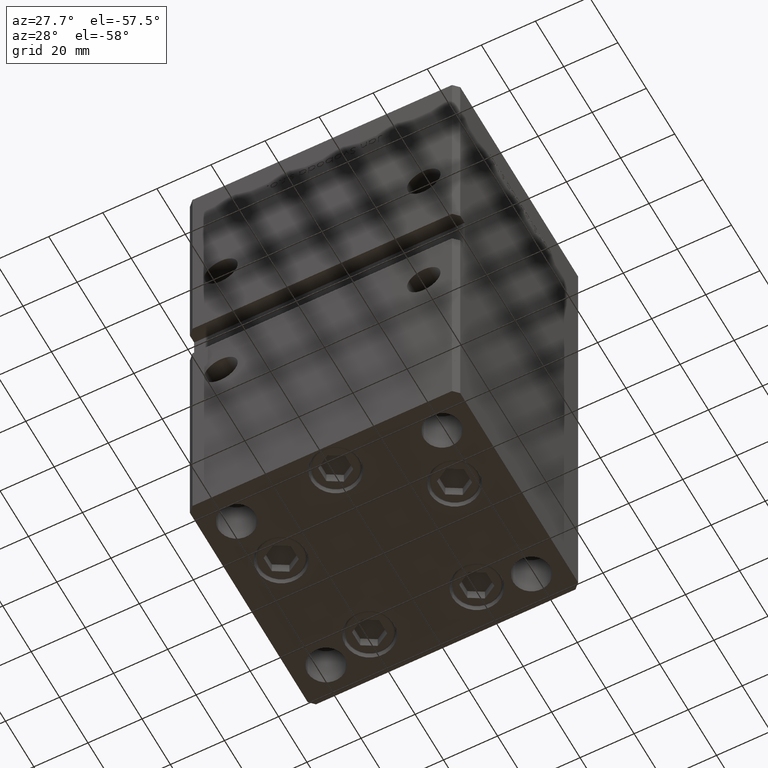
[diagram: clean part render]
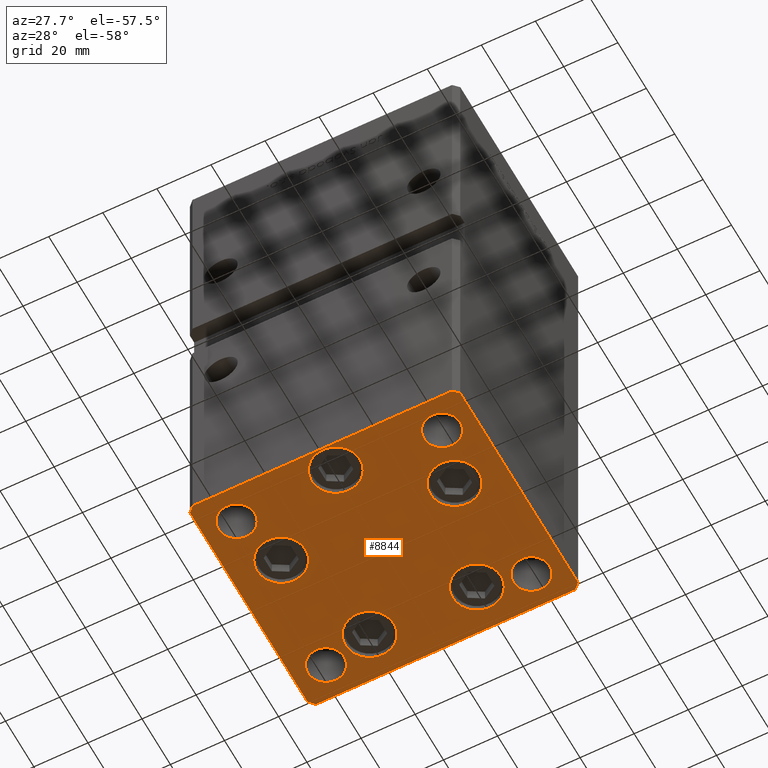
[diagram: same view with one face highlighted and labeled with its STEP entity id]
A machine part, auxiliary view. The second image highlights one B-rep face of the part: STEP entity #8844.
In plain terms, the highlighted planar face has unit normal (0, 0, -1).
Its self-contained STEP definition (entity closure, byte-faithful):
#515 = CARTESIAN_POINT ( 'NONE',  ( -50.00000000000000711, 41.49999999999995026, 0.000000000000000000 ) ) ;
#602 = DIRECTION ( 'NONE',  ( 0.7071067811865463515, 0.7071067811865487940, 0.000000000000000000 ) ) ;
#1158 = CARTESIAN_POINT ( 'NONE',  ( -47.99999999999999289, -43.50000000000001421, 0.000000000000000000 ) ) ;
#1231 = VERTEX_POINT ( 'NONE', #8826 ) ;
#1315 = CARTESIAN_POINT ( 'NONE',  ( 47.99999999999990763, 43.50000000000000000, 0.000000000000000000 ) ) ;
#1426 = DIRECTION ( 'NONE',  ( 1.000000000000000000, 0.000000000000000000, 0.000000000000000000 ) ) ;
#2004 = DIRECTION ( 'NONE',  ( 1.000000000000000000, 0.000000000000000000, 0.000000000000000000 ) ) ;
#2041 = AXIS2_PLACEMENT_3D ( 'NONE', #2871, #43785, #19278 ) ;
#2077 = CARTESIAN_POINT ( 'NONE',  ( -50.00000000000000711, 41.49999999999995026, 0.000000000000000000 ) ) ;
#2084 = DIRECTION ( 'NONE',  ( 0.000000000000000000, -0.000000000000000000, -1.000000000000000000 ) ) ;
#2335 = EDGE_CURVE ( 'NONE', #30189, #49201, #42742, .T. ) ;
#2353 = CARTESIAN_POINT ( 'NONE',  ( 50.00000000000000000, -41.49999999999999289, 0.000000000000000000 ) ) ;
#2357 = LINE ( 'NONE', #34656, #28492 ) ;
#2389 = CARTESIAN_POINT ( 'NONE',  ( -50.00000000000000000, -41.50000000000000000, 0.000000000000000000 ) ) ;
#2556 = CARTESIAN_POINT ( 'NONE',  ( 32.05550741379015278, -11.33333333333333037, 0.000000000000000000 ) ) ;
#2664 = EDGE_CURVE ( 'NONE', #6027, #41955, #37259, .T. ) ;
#2716 = CARTESIAN_POINT ( 'NONE',  ( 28.82068048781372838, 27.62500000000000000, 0.000000000000000000 ) ) ;
#2800 = CARTESIAN_POINT ( 'NONE',  ( -32.05550741379015278, -11.33333333333333925, 0.000000000000000000 ) ) ;
#2847 = DIRECTION ( 'NONE',  ( 1.000000000000000000, 0.000000000000000000, 0.000000000000000000 ) ) ;
#2871 = CARTESIAN_POINT ( 'NONE',  ( 0.000000000000000000, 0.000000000000000000, 0.000000000000000000 ) ) ;
#3306 = CIRCLE ( 'NONE', #27351, 9.000000000000001776 ) ;
#3525 = CARTESIAN_POINT ( 'NONE',  ( 41.05550741379015278, -11.33333333333332860, 0.000000000000000000 ) ) ;
#3667 = EDGE_CURVE ( 'NONE', #33695, #31370, #39026, .T. ) ;
#4667 = AXIS2_PLACEMENT_3D ( 'NONE', #8955, #4915, #12741 ) ;
#4677 = VECTOR ( 'NONE', #17210, 1000.000000000000000 ) ;
#4782 = DIRECTION ( 'NONE',  ( 1.000000000000000000, 0.000000000000000000, 0.000000000000000000 ) ) ;
#4915 = DIRECTION ( 'NONE',  ( 0.000000000000000000, -0.000000000000000000, -1.000000000000000000 ) ) ;
#5083 = VERTEX_POINT ( 'NONE', #35070 ) ;
#5452 = DIRECTION ( 'NONE',  ( 0.000000000000000000, -0.000000000000000000, -1.000000000000000000 ) ) ;
#5499 = ORIENTED_EDGE ( 'NONE', *, *, #2664, .T. ) ;
#5582 = EDGE_CURVE ( 'NONE', #23520, #27331, #17571, .T. ) ;
#5605 = CIRCLE ( 'NONE', #44319, 9.000000000000001776 ) ;
#5790 = ORIENTED_EDGE ( 'NONE', *, *, #5582, .T. ) ;
#6027 = VERTEX_POINT ( 'NONE', #2716 ) ;
#6241 = EDGE_CURVE ( 'NONE', #21551, #27215, #27023, .T. ) ;
#6294 = VECTOR ( 'NONE', #47298, 1000.000000000000000 ) ;
#6646 = FACE_BOUND ( 'NONE', #33800, .T. ) ;
#6769 = CARTESIAN_POINT ( 'NONE',  ( 9.000000000000003553, -34.00000000000000000, 0.000000000000000000 ) ) ;
#6898 = DIRECTION ( 'NONE',  ( 0.000000000000000000, -0.000000000000000000, -1.000000000000000000 ) ) ;
#8826 = CARTESIAN_POINT ( 'NONE',  ( 47.99999999999999289, -43.50000000000001421, 0.000000000000000000 ) ) ;
#8844 = ADVANCED_FACE ( 'NONE', ( #35169, #23047, #35435, #35987, #6646, #51598, #27358, #14705, #14975, #23591 ), #40025, .T. ) ;
#8955 = CARTESIAN_POINT ( 'NONE',  ( -32.05550741379015278, -11.33333333333333925, 0.000000000000000000 ) ) ;
#9012 = CARTESIAN_POINT ( 'NONE',  ( -31.25000000000000000, 31.50000000000000000, 0.000000000000000000 ) ) ;
#9023 = AXIS2_PLACEMENT_3D ( 'NONE', #50000, #29808, #4782 ) ;
#9041 = DIRECTION ( 'NONE',  ( -0.000000000000000000, 0.000000000000000000, 1.000000000000000000 ) ) ;
#9100 = AXIS2_PLACEMENT_3D ( 'NONE', #21493, #20960, #37921 ) ;
#10024 = LINE ( 'NONE', #1158, #12158 ) ;
#10076 = ORIENTED_EDGE ( 'NONE', *, *, #3667, .T. ) ;
#10717 = CARTESIAN_POINT ( 'NONE',  ( 38.00000000000000000, 31.49999999999999289, 0.000000000000000000 ) ) ;
#11769 = EDGE_CURVE ( 'NONE', #27892, #46682, #37409, .T. ) ;
#11914 = AXIS2_PLACEMENT_3D ( 'NONE', #10717, #35472, #51634 ) ;
#12158 = VECTOR ( 'NONE', #1426, 1000.000000000000000 ) ;
#12248 = CARTESIAN_POINT ( 'NONE',  ( 4.163799117101000559E-15, -34.00000000000000000, 0.000000000000000000 ) ) ;
#12741 = DIRECTION ( 'NONE',  ( 1.000000000000000000, 0.000000000000000000, 0.000000000000000000 ) ) ;
#12774 = ORIENTED_EDGE ( 'NONE', *, *, #13162, .F. ) ;
#13162 = EDGE_CURVE ( 'NONE', #41517, #42000, #32239, .T. ) ;
#13315 = EDGE_LOOP ( 'NONE', ( #21997, #28633 ) ) ;
#13697 = CARTESIAN_POINT ( 'NONE',  ( 50.00000000000000000, -41.49999999999999289, 0.000000000000000000 ) ) ;
#13919 = CARTESIAN_POINT ( 'NONE',  ( -38.00000000000000000, 31.50000000000000000, 0.000000000000000000 ) ) ;
#14182 = CARTESIAN_POINT ( 'NONE',  ( 4.163799117101000559E-15, -34.00000000000000000, 0.000000000000000000 ) ) ;
#14438 = DIRECTION ( 'NONE',  ( 8.360113137237628665E-17, -1.000000000000000000, 0.000000000000000000 ) ) ;
#14627 = VERTEX_POINT ( 'NONE', #1315 ) ;
#14705 = FACE_BOUND ( 'NONE', #13315, .T. ) ;
#14975 = FACE_OUTER_BOUND ( 'NONE', #16560, .T. ) ;
#15670 = EDGE_CURVE ( 'NONE', #46285, #25191, #35742, .T. ) ;
#16280 = LINE ( 'NONE', #36731, #19395 ) ;
#16314 = ORIENTED_EDGE ( 'NONE', *, *, #38926, .T. ) ;
#16502 = AXIS2_PLACEMENT_3D ( 'NONE', #43489, #27334, #27600 ) ;
#16560 = EDGE_LOOP ( 'NONE', ( #42926, #16314, #49876, #41262, #20568, #52063, #44289, #41537 ) ) ;
#16655 = AXIS2_PLACEMENT_3D ( 'NONE', #46893, #5452, #38289 ) ;
#17093 = ORIENTED_EDGE ( 'NONE', *, *, #49258, .T. ) ;
#17210 = DIRECTION ( 'NONE',  ( -0.7071067811865463515, -0.7071067811865487940, 0.000000000000000000 ) ) ;
#17526 = CARTESIAN_POINT ( 'NONE',  ( 47.99999999999999289, -43.50000000000001421, 0.000000000000000000 ) ) ;
#17571 = CIRCLE ( 'NONE', #40802, 9.000000000000000000 ) ;
#18205 = DIRECTION ( 'NONE',  ( -1.000000000000000000, -3.614007241618350743E-16, 0.000000000000000000 ) ) ;
#18477 = DIRECTION ( 'NONE',  ( 1.000000000000000000, 0.000000000000000000, 0.000000000000000000 ) ) ;
#18529 = EDGE_CURVE ( 'NONE', #21990, #32491, #21226, .T. ) ;
#18578 = CIRCLE ( 'NONE', #27184, 9.000000000000000000 ) ;
#18676 = CARTESIAN_POINT ( 'NONE',  ( 32.05550741379015278, -11.33333333333333037, 0.000000000000000000 ) ) ;
#18982 = CARTESIAN_POINT ( 'NONE',  ( -37.99999999999999289, -31.50000000000000000, 0.000000000000000000 ) ) ;
#19017 = VERTEX_POINT ( 'NONE', #48720 ) ;
#19278 = DIRECTION ( 'NONE',  ( 1.000000000000000000, 0.000000000000000000, 0.000000000000000000 ) ) ;
#19395 = VECTOR ( 'NONE', #49118, 1000.000000000000114 ) ;
#19478 = EDGE_CURVE ( 'NONE', #25191, #46285, #30691, .T. ) ;
#19700 = CARTESIAN_POINT ( 'NONE',  ( 19.82068048781373193, 27.62500000000000000, 0.000000000000000000 ) ) ;
#19749 = DIRECTION ( 'NONE',  ( 1.000000000000000000, 0.000000000000000000, 0.000000000000000000 ) ) ;
#19831 = EDGE_CURVE ( 'NONE', #1231, #30189, #33955, .T. ) ;
#19838 = EDGE_LOOP ( 'NONE', ( #31631, #23323 ) ) ;
#19960 = CIRCLE ( 'NONE', #39729, 6.749999999999999112 ) ;
#20075 = AXIS2_PLACEMENT_3D ( 'NONE', #31618, #35935, #52348 ) ;
#20359 = CARTESIAN_POINT ( 'NONE',  ( -38.00000000000000000, 31.50000000000000000, 0.000000000000000000 ) ) ;
#20527 = ORIENTED_EDGE ( 'NONE', *, *, #15670, .T. ) ;
#20568 = ORIENTED_EDGE ( 'NONE', *, *, #44952, .T. ) ;
#20628 = ORIENTED_EDGE ( 'NONE', *, *, #51313, .T. ) ;
#20960 = DIRECTION ( 'NONE',  ( 0.000000000000000000, -0.000000000000000000, -1.000000000000000000 ) ) ;
#21051 = CARTESIAN_POINT ( 'NONE',  ( -41.05550741379015278, -11.33333333333333925, 0.000000000000000000 ) ) ;
#21211 = CARTESIAN_POINT ( 'NONE',  ( -44.74999999999999289, -31.50000000000000000, 0.000000000000000000 ) ) ;
#21226 = CIRCLE ( 'NONE', #28993, 6.749999999999999112 ) ;
#21414 = EDGE_CURVE ( 'NONE', #42677, #19017, #3306, .T. ) ;
#21493 = CARTESIAN_POINT ( 'NONE',  ( -37.99999999999999289, -31.50000000000000000, 0.000000000000000000 ) ) ;
#21551 = VERTEX_POINT ( 'NONE', #21051 ) ;
#21641 = CIRCLE ( 'NONE', #16502, 9.000000000000000000 ) ;
#21977 = CARTESIAN_POINT ( 'NONE',  ( 47.99999999999990763, 43.50000000000000000, 0.000000000000000000 ) ) ;
#21988 = DIRECTION ( 'NONE',  ( -0.000000000000000000, 0.000000000000000000, 1.000000000000000000 ) ) ;
#21990 = VERTEX_POINT ( 'NONE', #31467 ) ;
#21997 = ORIENTED_EDGE ( 'NONE', *, *, #50215, .F. ) ;
#22479 = DIRECTION ( 'NONE',  ( 0.000000000000000000, -0.000000000000000000, -1.000000000000000000 ) ) ;
#22734 = EDGE_CURVE ( 'NONE', #42000, #41517, #51452, .T. ) ;
#22848 = AXIS2_PLACEMENT_3D ( 'NONE', #13919, #21988, #50538 ) ;
#23023 = CARTESIAN_POINT ( 'NONE',  ( 38.00000000000000000, -31.49999999999999289, 0.000000000000000000 ) ) ;
#23047 = FACE_BOUND ( 'NONE', #38685, .T. ) ;
#23323 = ORIENTED_EDGE ( 'NONE', *, *, #21414, .T. ) ;
#23520 = VERTEX_POINT ( 'NONE', #6769 ) ;
#23591 = FACE_BOUND ( 'NONE', #48955, .T. ) ;
#24348 = DIRECTION ( 'NONE',  ( 0.000000000000000000, -0.000000000000000000, -1.000000000000000000 ) ) ;
#24614 = DIRECTION ( 'NONE',  ( 1.000000000000000000, 0.000000000000000000, 0.000000000000000000 ) ) ;
#25191 = VERTEX_POINT ( 'NONE', #21211 ) ;
#25483 = AXIS2_PLACEMENT_3D ( 'NONE', #19700, #48247, #44994 ) ;
#25648 = ORIENTED_EDGE ( 'NONE', *, *, #51927, .T. ) ;
#25682 = CARTESIAN_POINT ( 'NONE',  ( 49.99999999999992184, 41.49999999999998579, 0.000000000000000000 ) ) ;
#26085 = CARTESIAN_POINT ( 'NONE',  ( -48.00000000000000711, 43.49999999999996447, 0.000000000000000000 ) ) ;
#26100 = EDGE_CURVE ( 'NONE', #5083, #36108, #36840, .T. ) ;
#26303 = VECTOR ( 'NONE', #14438, 1000.000000000000000 ) ;
#27023 = CIRCLE ( 'NONE', #4667, 9.000000000000001776 ) ;
#27184 = AXIS2_PLACEMENT_3D ( 'NONE', #14182, #2084, #18477 ) ;
#27215 = VERTEX_POINT ( 'NONE', #42776 ) ;
#27269 = AXIS2_PLACEMENT_3D ( 'NONE', #18982, #35406, #36211 ) ;
#27331 = VERTEX_POINT ( 'NONE', #51902 ) ;
#27334 = DIRECTION ( 'NONE',  ( 0.000000000000000000, -0.000000000000000000, -1.000000000000000000 ) ) ;
#27351 = AXIS2_PLACEMENT_3D ( 'NONE', #18676, #31870, #19749 ) ;
#27358 = FACE_BOUND ( 'NONE', #30046, .T. ) ;
#27367 = ORIENTED_EDGE ( 'NONE', *, *, #36984, .T. ) ;
#27600 = DIRECTION ( 'NONE',  ( 1.000000000000000000, 0.000000000000000000, 0.000000000000000000 ) ) ;
#27892 = VERTEX_POINT ( 'NONE', #35903 ) ;
#28492 = VECTOR ( 'NONE', #44549, 1000.000000000000114 ) ;
#28633 = ORIENTED_EDGE ( 'NONE', *, *, #18529, .F. ) ;
#28871 = ORIENTED_EDGE ( 'NONE', *, *, #19478, .T. ) ;
#28993 = AXIS2_PLACEMENT_3D ( 'NONE', #20359, #9041, #33014 ) ;
#29790 = LINE ( 'NONE', #21977, #51595 ) ;
#29808 = DIRECTION ( 'NONE',  ( -0.000000000000000000, 0.000000000000000000, 1.000000000000000000 ) ) ;
#30046 = EDGE_LOOP ( 'NONE', ( #39172, #50445 ) ) ;
#30189 = VERTEX_POINT ( 'NONE', #13697 ) ;
#30691 = CIRCLE ( 'NONE', #27269, 6.749999999999999112 ) ;
#30804 = AXIS2_PLACEMENT_3D ( 'NONE', #31832, #48786, #35876 ) ;
#31370 = VERTEX_POINT ( 'NONE', #51837 ) ;
#31459 = CIRCLE ( 'NONE', #22848, 6.749999999999999112 ) ;
#31467 = CARTESIAN_POINT ( 'NONE',  ( -44.75000000000000000, 31.50000000000000000, 0.000000000000000000 ) ) ;
#31618 = CARTESIAN_POINT ( 'NONE',  ( 19.82068048781373193, 27.62500000000000000, 0.000000000000000000 ) ) ;
#31631 = ORIENTED_EDGE ( 'NONE', *, *, #44050, .T. ) ;
#31832 = CARTESIAN_POINT ( 'NONE',  ( 38.00000000000000000, -31.49999999999999289, 0.000000000000000000 ) ) ;
#31855 = CARTESIAN_POINT ( 'NONE',  ( -31.24999999999999289, -31.50000000000000000, 0.000000000000000000 ) ) ;
#31870 = DIRECTION ( 'NONE',  ( 0.000000000000000000, -0.000000000000000000, -1.000000000000000000 ) ) ;
#32135 = ORIENTED_EDGE ( 'NONE', *, *, #22734, .F. ) ;
#32139 = EDGE_CURVE ( 'NONE', #14627, #27892, #29790, .T. ) ;
#32239 = CIRCLE ( 'NONE', #9023, 6.749999999999999112 ) ;
#32491 = VERTEX_POINT ( 'NONE', #9012 ) ;
#33014 = DIRECTION ( 'NONE',  ( 1.000000000000000000, 0.000000000000000000, 0.000000000000000000 ) ) ;
#33695 = VERTEX_POINT ( 'NONE', #43521 ) ;
#33800 = EDGE_LOOP ( 'NONE', ( #38704, #17093 ) ) ;
#33955 = LINE ( 'NONE', #17526, #35031 ) ;
#34656 = CARTESIAN_POINT ( 'NONE',  ( -50.00000000000000000, -41.50000000000000000, 0.000000000000000000 ) ) ;
#34826 = DIRECTION ( 'NONE',  ( 0.000000000000000000, -0.000000000000000000, -1.000000000000000000 ) ) ;
#34917 = EDGE_CURVE ( 'NONE', #37364, #44742, #2357, .T. ) ;
#35031 = VECTOR ( 'NONE', #602, 1000.000000000000000 ) ;
#35070 = CARTESIAN_POINT ( 'NONE',  ( 44.75000000000000000, -31.49999999999999289, 0.000000000000000000 ) ) ;
#35169 = FACE_BOUND ( 'NONE', #47542, .T. ) ;
#35406 = DIRECTION ( 'NONE',  ( 0.000000000000000000, -0.000000000000000000, -1.000000000000000000 ) ) ;
#35435 = FACE_BOUND ( 'NONE', #19838, .T. ) ;
#35472 = DIRECTION ( 'NONE',  ( -0.000000000000000000, 0.000000000000000000, 1.000000000000000000 ) ) ;
#35742 = CIRCLE ( 'NONE', #9100, 6.749999999999999112 ) ;
#35876 = DIRECTION ( 'NONE',  ( 1.000000000000000000, 0.000000000000000000, 0.000000000000000000 ) ) ;
#35903 = CARTESIAN_POINT ( 'NONE',  ( -48.00000000000000711, 43.49999999999996447, 0.000000000000000000 ) ) ;
#35935 = DIRECTION ( 'NONE',  ( 0.000000000000000000, -0.000000000000000000, -1.000000000000000000 ) ) ;
#35987 = FACE_BOUND ( 'NONE', #44843, .T. ) ;
#36108 = VERTEX_POINT ( 'NONE', #39718 ) ;
#36211 = DIRECTION ( 'NONE',  ( 1.000000000000000000, 0.000000000000000000, 0.000000000000000000 ) ) ;
#36731 = CARTESIAN_POINT ( 'NONE',  ( 49.99999999999992184, 41.49999999999998579, 0.000000000000000000 ) ) ;
#36840 = CIRCLE ( 'NONE', #30804, 6.749999999999999112 ) ;
#36937 = EDGE_CURVE ( 'NONE', #36108, #5083, #19960, .T. ) ;
#36984 = EDGE_CURVE ( 'NONE', #31370, #33695, #21641, .T. ) ;
#37136 = CARTESIAN_POINT ( 'NONE',  ( 10.82068048781373193, 27.62500000000000000, 0.000000000000000000 ) ) ;
#37259 = CIRCLE ( 'NONE', #20075, 8.999999999999998224 ) ;
#37364 = VERTEX_POINT ( 'NONE', #2389 ) ;
#37409 = LINE ( 'NONE', #26085, #4677 ) ;
#37411 = AXIS2_PLACEMENT_3D ( 'NONE', #2800, #34826, #2004 ) ;
#37921 = DIRECTION ( 'NONE',  ( 1.000000000000000000, 0.000000000000000000, 0.000000000000000000 ) ) ;
#38289 = DIRECTION ( 'NONE',  ( 1.000000000000000000, 0.000000000000000000, 0.000000000000000000 ) ) ;
#38685 = EDGE_LOOP ( 'NONE', ( #25648, #5499 ) ) ;
#38704 = ORIENTED_EDGE ( 'NONE', *, *, #6241, .T. ) ;
#38926 = EDGE_CURVE ( 'NONE', #44742, #1231, #10024, .T. ) ;
#39026 = CIRCLE ( 'NONE', #16655, 9.000000000000000000 ) ;
#39166 = DIRECTION ( 'NONE',  ( 1.000000000000000000, 0.000000000000000000, 0.000000000000000000 ) ) ;
#39172 = ORIENTED_EDGE ( 'NONE', *, *, #26100, .T. ) ;
#39718 = CARTESIAN_POINT ( 'NONE',  ( 31.25000000000000000, -31.49999999999999289, 0.000000000000000000 ) ) ;
#39729 = AXIS2_PLACEMENT_3D ( 'NONE', #23023, #6898, #2847 ) ;
#40025 = PLANE ( 'NONE',  #2041 ) ;
#40581 = EDGE_LOOP ( 'NONE', ( #32135, #12774 ) ) ;
#40802 = AXIS2_PLACEMENT_3D ( 'NONE', #12248, #24348, #24614 ) ;
#41262 = ORIENTED_EDGE ( 'NONE', *, *, #2335, .T. ) ;
#41517 = VERTEX_POINT ( 'NONE', #47727 ) ;
#41537 = ORIENTED_EDGE ( 'NONE', *, *, #50373, .T. ) ;
#41955 = VERTEX_POINT ( 'NONE', #37136 ) ;
#42000 = VERTEX_POINT ( 'NONE', #42237 ) ;
#42237 = CARTESIAN_POINT ( 'NONE',  ( 44.75000000000000000, 31.49999999999999289, 0.000000000000000000 ) ) ;
#42677 = VERTEX_POINT ( 'NONE', #3525 ) ;
#42742 = LINE ( 'NONE', #2353, #6294 ) ;
#42776 = CARTESIAN_POINT ( 'NONE',  ( -23.05550741379014923, -11.33333333333333748, 0.000000000000000000 ) ) ;
#42926 = ORIENTED_EDGE ( 'NONE', *, *, #34917, .T. ) ;
#43489 = CARTESIAN_POINT ( 'NONE',  ( -19.82068048781373903, 27.62499999999999645, 0.000000000000000000 ) ) ;
#43521 = CARTESIAN_POINT ( 'NONE',  ( -10.82068048781373903, 27.62499999999999645, 0.000000000000000000 ) ) ;
#43785 = DIRECTION ( 'NONE',  ( -0.000000000000000000, 0.000000000000000000, 1.000000000000000000 ) ) ;
#44050 = EDGE_CURVE ( 'NONE', #19017, #42677, #5605, .T. ) ;
#44289 = ORIENTED_EDGE ( 'NONE', *, *, #11769, .T. ) ;
#44319 = AXIS2_PLACEMENT_3D ( 'NONE', #2556, #22479, #39166 ) ;
#44549 = DIRECTION ( 'NONE',  ( 0.7071067811865474617, -0.7071067811865474617, 0.000000000000000000 ) ) ;
#44742 = VERTEX_POINT ( 'NONE', #53227 ) ;
#44843 = EDGE_LOOP ( 'NONE', ( #20628, #5790 ) ) ;
#44952 = EDGE_CURVE ( 'NONE', #49201, #14627, #16280, .T. ) ;
#44994 = DIRECTION ( 'NONE',  ( 1.000000000000000000, 0.000000000000000000, 0.000000000000000000 ) ) ;
#46285 = VERTEX_POINT ( 'NONE', #31855 ) ;
#46682 = VERTEX_POINT ( 'NONE', #515 ) ;
#46893 = CARTESIAN_POINT ( 'NONE',  ( -19.82068048781373903, 27.62499999999999645, 0.000000000000000000 ) ) ;
#46910 = CIRCLE ( 'NONE', #37411, 9.000000000000001776 ) ;
#47025 = CIRCLE ( 'NONE', #25483, 8.999999999999998224 ) ;
#47298 = DIRECTION ( 'NONE',  ( -1.003213576468515193E-15, 1.000000000000000000, 0.000000000000000000 ) ) ;
#47542 = EDGE_LOOP ( 'NONE', ( #27367, #10076 ) ) ;
#47727 = CARTESIAN_POINT ( 'NONE',  ( 31.25000000000000000, 31.49999999999999289, 0.000000000000000000 ) ) ;
#47825 = LINE ( 'NONE', #2077, #26303 ) ;
#48247 = DIRECTION ( 'NONE',  ( 0.000000000000000000, -0.000000000000000000, -1.000000000000000000 ) ) ;
#48720 = CARTESIAN_POINT ( 'NONE',  ( 23.05550741379014923, -11.33333333333333037, 0.000000000000000000 ) ) ;
#48786 = DIRECTION ( 'NONE',  ( 0.000000000000000000, -0.000000000000000000, -1.000000000000000000 ) ) ;
#48955 = EDGE_LOOP ( 'NONE', ( #20527, #28871 ) ) ;
#49118 = DIRECTION ( 'NONE',  ( -0.7071067811865474617, 0.7071067811865474617, 0.000000000000000000 ) ) ;
#49201 = VERTEX_POINT ( 'NONE', #25682 ) ;
#49258 = EDGE_CURVE ( 'NONE', #27215, #21551, #46910, .T. ) ;
#49876 = ORIENTED_EDGE ( 'NONE', *, *, #19831, .T. ) ;
#50000 = CARTESIAN_POINT ( 'NONE',  ( 38.00000000000000000, 31.49999999999999289, 0.000000000000000000 ) ) ;
#50215 = EDGE_CURVE ( 'NONE', #32491, #21990, #31459, .T. ) ;
#50373 = EDGE_CURVE ( 'NONE', #46682, #37364, #47825, .T. ) ;
#50445 = ORIENTED_EDGE ( 'NONE', *, *, #36937, .T. ) ;
#50538 = DIRECTION ( 'NONE',  ( 1.000000000000000000, 0.000000000000000000, 0.000000000000000000 ) ) ;
#51313 = EDGE_CURVE ( 'NONE', #27331, #23520, #18578, .T. ) ;
#51452 = CIRCLE ( 'NONE', #11914, 6.749999999999999112 ) ;
#51595 = VECTOR ( 'NONE', #18205, 1000.000000000000000 ) ;
#51598 = FACE_BOUND ( 'NONE', #40581, .T. ) ;
#51634 = DIRECTION ( 'NONE',  ( 1.000000000000000000, 0.000000000000000000, 0.000000000000000000 ) ) ;
#51837 = CARTESIAN_POINT ( 'NONE',  ( -28.82068048781373548, 27.62499999999999645, 0.000000000000000000 ) ) ;
#51902 = CARTESIAN_POINT ( 'NONE',  ( -8.999999999999996447, -34.00000000000000000, 0.000000000000000000 ) ) ;
#51927 = EDGE_CURVE ( 'NONE', #41955, #6027, #47025, .T. ) ;
#52063 = ORIENTED_EDGE ( 'NONE', *, *, #32139, .T. ) ;
#52348 = DIRECTION ( 'NONE',  ( 1.000000000000000000, 0.000000000000000000, 0.000000000000000000 ) ) ;
#53227 = CARTESIAN_POINT ( 'NONE',  ( -47.99999999999999289, -43.50000000000001421, 0.000000000000000000 ) ) ;